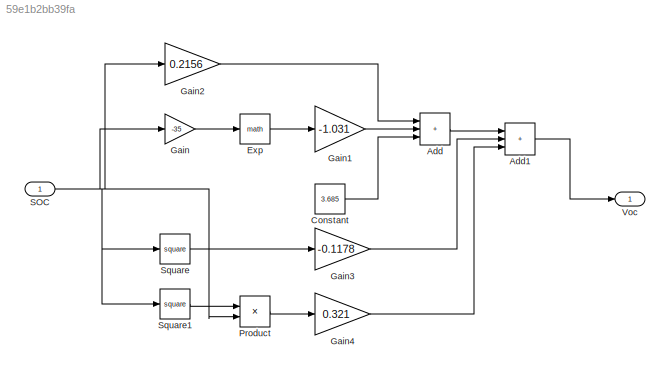
MODEL slx_59e1b2bb39fa
KIND model
CONFIG AbsTol = auto
CONFIG EnableMultiTasking = off
CONFIG FixedStep = auto
CONFIG MaxStep = auto
CONFIG MinStep = auto
CONFIG RelTol = 1e-3
CONFIG SampleTimeConstraint = Unconstrained
CONFIG SolverName = VariableStepAuto
CONFIG StartTime = 0.0
CONFIG StopTime = 10.0
BLOCK [Sum] Add
  IconShape = rectangular
  Inputs = +++
BLOCK [Sum] Add1
  IconShape = rectangular
  Inputs = +++
BLOCK [Constant] Constant
  Value = 3.685
BLOCK [Math] Exp
BLOCK [Gain] Gain
  Gain = -35
BLOCK [Gain] Gain1
  Gain = -1.031
BLOCK [Gain] Gain2
  Gain = 0.2156
BLOCK [Gain] Gain3
  Gain = -0.1178
BLOCK [Gain] Gain4
  Gain = 0.321
BLOCK [Product] Product
BLOCK [Inport] SOC
BLOCK [Math] Square
  Operator = square
BLOCK [Math] Square1
  Operator = square
BLOCK [Outport] Voc
LINE Add1:1 -> Voc:1
LINE Add:1 -> Add1:1
LINE Constant:1 -> Add:3
LINE Exp:1 -> Gain1:1
LINE Gain1:1 -> Add:2
LINE Gain2:1 -> Add:1
LINE Gain3:1 -> Add1:2
LINE Gain4:1 -> Add1:3
LINE Gain:1 -> Exp:1
LINE Product:1 -> Gain4:1
NET SOC:1 -> Gain2:1, Gain:1, Product:2, Square1:1, Square:1
LINE Square1:1 -> Product:1
LINE Square:1 -> Gain3:1
note: NET lines group one-source signal fan-out (src -> all destinations, sorted); 1:1 wires keep LINE
